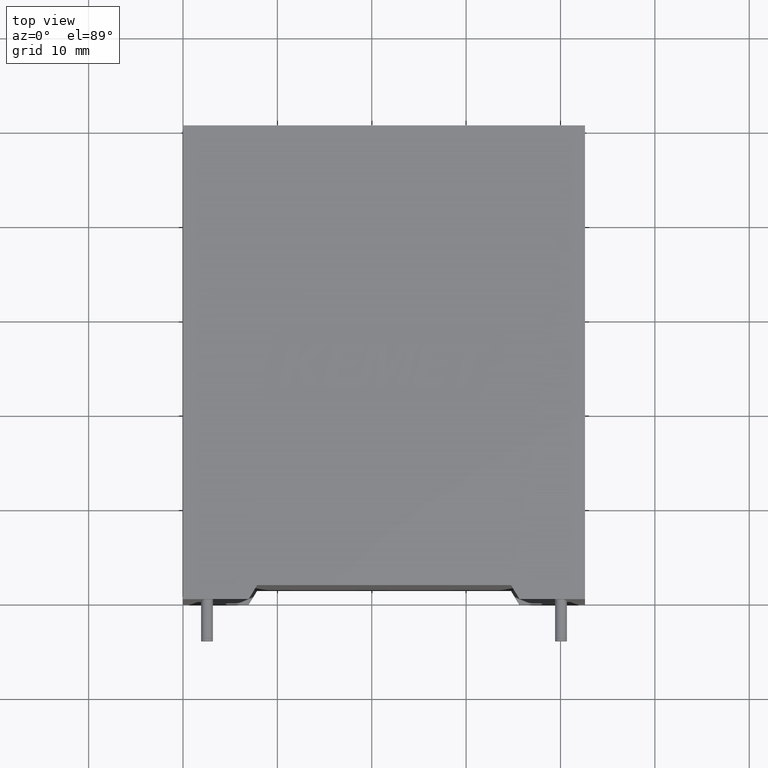
[diagram: clean part render]
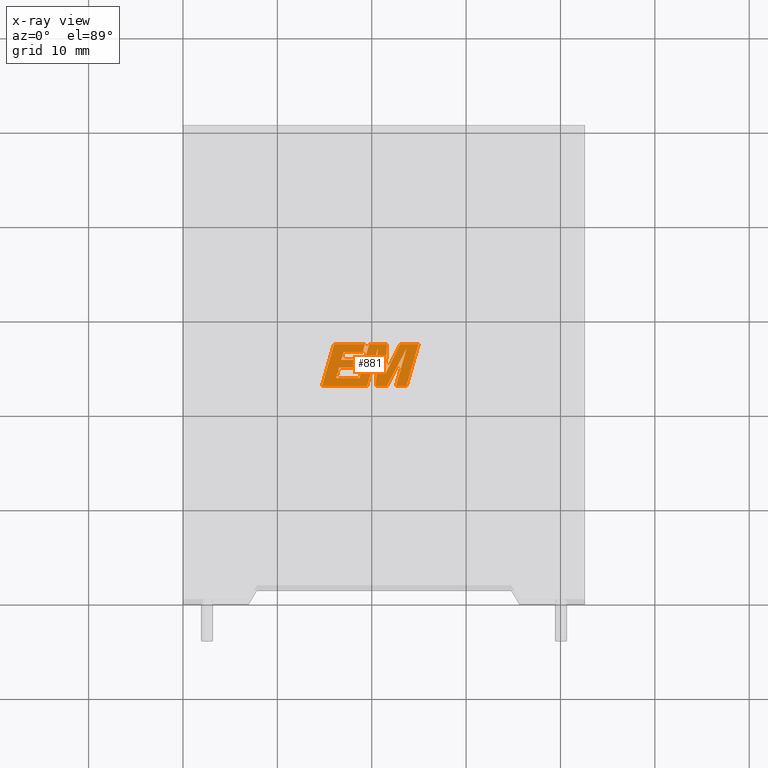
[diagram: x-ray — body ghosted, one internal face saturated and labeled with its STEP entity id]
A machine part, top view, then the same camera in x-ray: the body is ghosted and one INTERNAL B-rep face — a face not visible from any outside direction — is saturated and labeled: STEP entity #881.
In plain terms, the highlighted planar face has unit normal (0, 0, -1).
Its self-contained STEP definition (entity closure, byte-faithful):
#5 = EDGE_LOOP ( 'NONE', ( #3273, #1567, #3357, #2849, #3428, #650, #1947, #246, #2525, #399, #1498, #324, #291, #831, #211, #589, #279, #1549, #3099, #2994, #1437, #2503, #878 ) ) ;
#12 = DIRECTION ( 'NONE',  ( 0.0000000000000000000, 0.0000000000000000000, -1.000000000000000000 ) ) ;
#52 = VECTOR ( 'NONE', #784, 1000.000000000000000 ) ;
#54 = CARTESIAN_POINT ( 'NONE',  ( 22.55971088192821100, 22.57493999999988100, 35.39999999999999900 ) ) ;
#57 = DIRECTION ( 'NONE',  ( -0.2765379750249978300, -0.9610029908221272600, 0.0000000000000000000 ) ) ;
#68 = CARTESIAN_POINT ( 'NONE',  ( 18.72003407046369000, 22.57493999999987700, 35.39999999999999900 ) ) ;
#79 = CARTESIAN_POINT ( 'NONE',  ( 16.54963302310860100, 24.52120559325017300, 35.39999999999999900 ) ) ;
#142 = DIRECTION ( 'NONE',  ( 0.2740217765954296400, 0.9617234872620531400, 0.0000000000000000000 ) ) ;
#204 = VERTEX_POINT ( 'NONE', #792 ) ;
#208 = EDGE_CURVE ( 'NONE', #204, #791, #2668, .T. ) ;
#211 = ORIENTED_EDGE ( 'NONE', *, *, #1575, .F. ) ;
#220 = LINE ( 'NONE', #2665, #1464 ) ;
#244 = DIRECTION ( 'NONE',  ( 0.4668459304955230900, 0.8843386665637600300, 0.0000000000000000000 ) ) ;
#246 = ORIENTED_EDGE ( 'NONE', *, *, #3385, .F. ) ;
#273 = VERTEX_POINT ( 'NONE', #2921 ) ;
#279 = ORIENTED_EDGE ( 'NONE', *, *, #1676, .F. ) ;
#291 = ORIENTED_EDGE ( 'NONE', *, *, #993, .F. ) ;
#299 = EDGE_CURVE ( 'NONE', #2126, #360, #3167, .T. ) ;
#324 = ORIENTED_EDGE ( 'NONE', *, *, #2991, .F. ) ;
#349 = VECTOR ( 'NONE', #3203, 1000.000000000000100 ) ;
#350 = CARTESIAN_POINT ( 'NONE',  ( 19.72672177880340200, 27.01047267852246800, 35.39999999999999900 ) ) ;
#360 = VERTEX_POINT ( 'NONE', #2139 ) ;
#371 = CARTESIAN_POINT ( 'NONE',  ( 16.00748119315608500, 27.01047267852246800, 35.39999999999999900 ) ) ;
#399 = ORIENTED_EDGE ( 'NONE', *, *, #1012, .F. ) ;
#407 = VECTOR ( 'NONE', #481, 1000.000000000000200 ) ;
#464 = LINE ( 'NONE', #3163, #670 ) ;
#478 = CARTESIAN_POINT ( 'NONE',  ( 18.69434191160631900, 23.41880278269269100, 35.39999999999999900 ) ) ;
#479 = EDGE_CURVE ( 'NONE', #1415, #2126, #945, .T. ) ;
#481 = DIRECTION ( 'NONE',  ( 0.2732148821746573400, 0.9619530280415400400, 0.0000000000000000000 ) ) ;
#498 = EDGE_CURVE ( 'NONE', #1433, #2534, #906, .T. ) ;
#503 = DIRECTION ( 'NONE',  ( -1.000000000000000000, 0.0000000000000000000, 0.0000000000000000000 ) ) ;
#513 = CARTESIAN_POINT ( 'NONE',  ( 21.61565822307399600, 27.01047267852246800, 35.39999999999999900 ) ) ;
#578 = CARTESIAN_POINT ( 'NONE',  ( 24.96209664954390200, 27.01047267852246800, 35.39999999999999900 ) ) ;
#587 = EDGE_CURVE ( 'NONE', #2277, #273, #2165, .T. ) ;
#589 = ORIENTED_EDGE ( 'NONE', *, *, #587, .F. ) ;
#590 = CARTESIAN_POINT ( 'NONE',  ( 16.54963302310860100, 24.52120559325017300, 35.39999999999999900 ) ) ;
#603 = DIRECTION ( 'NONE',  ( 1.000000000000000000, 0.0000000000000000000, 0.0000000000000000000 ) ) ;
#613 = DIRECTION ( 'NONE',  ( 1.000000000000000000, 0.0000000000000000000, 0.0000000000000000000 ) ) ;
#629 = LINE ( 'NONE', #2081, #1123 ) ;
#641 = CARTESIAN_POINT ( 'NONE',  ( 21.61565822307399600, 27.01047267852246800, 35.39999999999999900 ) ) ;
#650 = ORIENTED_EDGE ( 'NONE', *, *, #1846, .F. ) ;
#660 = VERTEX_POINT ( 'NONE', #2022 ) ;
#670 = VECTOR ( 'NONE', #503, 1000.000000000000000 ) ;
#680 = DIRECTION ( 'NONE',  ( 0.2763139702539144100, 0.9610674221107065000, 0.0000000000000000000 ) ) ;
#720 = VERTEX_POINT ( 'NONE', #2898 ) ;
#724 = EDGE_CURVE ( 'NONE', #1397, #2688, #762, .T. ) ;
#727 = VECTOR ( 'NONE', #142, 1000.000000000000100 ) ;
#738 = VERTEX_POINT ( 'NONE', #513 ) ;
#762 = LINE ( 'NONE', #3387, #52 ) ;
#784 = DIRECTION ( 'NONE',  ( -0.05596501978068446600, -0.9984327301130244700, 0.0000000000000000000 ) ) ;
#791 = VERTEX_POINT ( 'NONE', #1527 ) ;
#792 = CARTESIAN_POINT ( 'NONE',  ( 21.60450190883435100, 22.57493999999987700, 35.39999999999999900 ) ) ;
#796 = EDGE_CURVE ( 'NONE', #1595, #1433, #2209, .T. ) ;
#812 = LINE ( 'NONE', #68, #3047 ) ;
#831 = ORIENTED_EDGE ( 'NONE', *, *, #2764, .F. ) ;
#862 = EDGE_CURVE ( 'NONE', #791, #2597, #2706, .T. ) ;
#878 = ORIENTED_EDGE ( 'NONE', *, *, #2091, .F. ) ;
#881 = ADVANCED_FACE ( 'NONE', ( #2542 ), #1314, .T. ) ;
#906 = LINE ( 'NONE', #1966, #727 ) ;
#945 = LINE ( 'NONE', #2251, #2299 ) ;
#948 = EDGE_CURVE ( 'NONE', #3029, #1595, #2295, .T. ) ;
#974 = CARTESIAN_POINT ( 'NONE',  ( 19.04451057535562700, 26.16619180815600400, 35.39999999999999900 ) ) ;
#990 = VECTOR ( 'NONE', #1070, 1000.000000000000100 ) ;
#993 = EDGE_CURVE ( 'NONE', #1868, #1292, #2546, .T. ) ;
#1012 = EDGE_CURVE ( 'NONE', #720, #3212, #1056, .T. ) ;
#1030 = EDGE_CURVE ( 'NONE', #3212, #1486, #812, .T. ) ;
#1056 = LINE ( 'NONE', #371, #2210 ) ;
#1070 = DIRECTION ( 'NONE',  ( 0.05375259206908569700, 0.9985542843760946100, 0.0000000000000000000 ) ) ;
#1123 = VECTOR ( 'NONE', #1577, 1000.000000000000000 ) ;
#1126 = EDGE_CURVE ( 'NONE', #738, #3029, #3375, .T. ) ;
#1134 = VECTOR ( 'NONE', #1413, 1000.000000000000000 ) ;
#1179 = CARTESIAN_POINT ( 'NONE',  ( 18.69434191160631900, 23.41880278269269100, 35.39999999999999900 ) ) ;
#1191 = LINE ( 'NONE', #2868, #407 ) ;
#1203 = VECTOR ( 'NONE', #2069, 1000.000000000000000 ) ;
#1206 = DIRECTION ( 'NONE',  ( 0.2759782365590843200, 0.9611638845408925200, 0.0000000000000000000 ) ) ;
#1243 = CARTESIAN_POINT ( 'NONE',  ( 16.78357331124689000, 25.34118343126179300, 35.39999999999999900 ) ) ;
#1292 = VERTEX_POINT ( 'NONE', #974 ) ;
#1298 = CARTESIAN_POINT ( 'NONE',  ( 16.23552779361820300, 23.41880278269269100, 35.39999999999999900 ) ) ;
#1314 = PLANE ( 'NONE',  #2860 ) ;
#1318 = CARTESIAN_POINT ( 'NONE',  ( 21.60450190883435100, 22.57493999999987700, 35.39999999999999900 ) ) ;
#1329 = LINE ( 'NONE', #2207, #1134 ) ;
#1332 = CARTESIAN_POINT ( 'NONE',  ( 24.96209664954390200, 27.01047267852246800, 35.39999999999999900 ) ) ;
#1335 = CARTESIAN_POINT ( 'NONE',  ( 19.50954545448809100, 22.57493999999987700, 35.39999999999999900 ) ) ;
#1344 = DIRECTION ( 'NONE',  ( -0.4443210308329524900, -0.8958676361826798400, 0.0000000000000000000 ) ) ;
#1397 = VERTEX_POINT ( 'NONE', #2089 ) ;
#1413 = DIRECTION ( 'NONE',  ( -1.000000000000000000, 0.0000000000000000000, 0.0000000000000000000 ) ) ;
#1415 = VERTEX_POINT ( 'NONE', #2635 ) ;
#1433 = VERTEX_POINT ( 'NONE', #1298 ) ;
#1437 = ORIENTED_EDGE ( 'NONE', *, *, #1126, .F. ) ;
#1450 = CARTESIAN_POINT ( 'NONE',  ( 20.42202856382045800, 22.57493999999987700, 35.39999999999999900 ) ) ;
#1464 = VECTOR ( 'NONE', #1344, 1000.000000000000100 ) ;
#1486 = VERTEX_POINT ( 'NONE', #1335 ) ;
#1498 = ORIENTED_EDGE ( 'NONE', *, *, #1851, .F. ) ;
#1527 = CARTESIAN_POINT ( 'NONE',  ( 23.69914816909359300, 26.54279440274525800, 35.39999999999999900 ) ) ;
#1549 = ORIENTED_EDGE ( 'NONE', *, *, #498, .F. ) ;
#1567 = ORIENTED_EDGE ( 'NONE', *, *, #479, .F. ) ;
#1575 = EDGE_CURVE ( 'NONE', #273, #2905, #1329, .T. ) ;
#1577 = DIRECTION ( 'NONE',  ( 1.000000000000000000, 0.0000000000000000000, 0.0000000000000000000 ) ) ;
#1595 = VERTEX_POINT ( 'NONE', #1179 ) ;
#1596 = DIRECTION ( 'NONE',  ( -1.000000000000000000, 0.0000000000000000000, 0.0000000000000000000 ) ) ;
#1606 = DIRECTION ( 'NONE',  ( -1.000000000000000000, 0.0000000000000000000, -0.0000000000000000000 ) ) ;
#1654 = CARTESIAN_POINT ( 'NONE',  ( 17.02363656092146000, 26.16619180815600400, 35.39999999999999900 ) ) ;
#1672 = CARTESIAN_POINT ( 'NONE',  ( 18.45314577919338500, 24.52120559325017300, 35.39999999999999900 ) ) ;
#1676 = EDGE_CURVE ( 'NONE', #2534, #2277, #2000, .T. ) ;
#1705 = LINE ( 'NONE', #2334, #1203 ) ;
#1739 = VECTOR ( 'NONE', #2230, 1000.000000000000100 ) ;
#1760 = VECTOR ( 'NONE', #603, 1000.000000000000000 ) ;
#1779 = CARTESIAN_POINT ( 'NONE',  ( 18.45314577919338500, 24.52120559325017300, 35.39999999999999900 ) ) ;
#1793 = EDGE_CURVE ( 'NONE', #2597, #1415, #1705, .T. ) ;
#1846 = EDGE_CURVE ( 'NONE', #2688, #204, #629, .T. ) ;
#1851 = EDGE_CURVE ( 'NONE', #2812, #720, #464, .T. ) ;
#1868 = VERTEX_POINT ( 'NONE', #2604 ) ;
#1891 = LINE ( 'NONE', #2931, #990 ) ;
#1947 = ORIENTED_EDGE ( 'NONE', *, *, #724, .F. ) ;
#1966 = CARTESIAN_POINT ( 'NONE',  ( 16.23552779361820300, 23.41880278269269100, 35.39999999999999900 ) ) ;
#2000 = LINE ( 'NONE', #79, #2402 ) ;
#2020 = LINE ( 'NONE', #2526, #2554 ) ;
#2022 = CARTESIAN_POINT ( 'NONE',  ( 21.44508031966771700, 23.84167114338324800, 35.39999999999999900 ) ) ;
#2045 = VECTOR ( 'NONE', #2591, 1000.000000000000000 ) ;
#2069 = DIRECTION ( 'NONE',  ( 1.000000000000000000, 0.0000000000000000000, 0.0000000000000000000 ) ) ;
#2081 = CARTESIAN_POINT ( 'NONE',  ( 20.42202856382045800, 22.57493999999987700, 35.39999999999999900 ) ) ;
#2089 = CARTESIAN_POINT ( 'NONE',  ( 20.64337227469650000, 26.52377815657259000, 35.39999999999999900 ) ) ;
#2091 = EDGE_CURVE ( 'NONE', #360, #660, #220, .T. ) ;
#2126 = VERTEX_POINT ( 'NONE', #578 ) ;
#2139 = CARTESIAN_POINT ( 'NONE',  ( 23.01670218402871300, 27.01047267852246800, 35.39999999999999900 ) ) ;
#2145 = CARTESIAN_POINT ( 'NONE',  ( 23.69914816909359300, 26.54279440274525800, 35.39999999999999900 ) ) ;
#2165 = LINE ( 'NONE', #1779, #3200 ) ;
#2195 = DIRECTION ( 'NONE',  ( -0.2762517575166409900, -0.9610853065513834700, 0.0000000000000000000 ) ) ;
#2207 = CARTESIAN_POINT ( 'NONE',  ( 18.68735580131990700, 25.34118343126179300, 35.39999999999999900 ) ) ;
#2209 = LINE ( 'NONE', #478, #2045 ) ;
#2210 = VECTOR ( 'NONE', #57, 1000.000000000000100 ) ;
#2230 = DIRECTION ( 'NONE',  ( 0.2793947940878290800, 0.9601763114327595000, 0.0000000000000000000 ) ) ;
#2251 = CARTESIAN_POINT ( 'NONE',  ( 23.68684829922329600, 22.57493999999988100, 35.39999999999999900 ) ) ;
#2277 = VERTEX_POINT ( 'NONE', #1672 ) ;
#2295 = LINE ( 'NONE', #350, #3336 ) ;
#2299 = VECTOR ( 'NONE', #680, 1000.000000000000100 ) ;
#2334 = CARTESIAN_POINT ( 'NONE',  ( 22.55971088192821100, 22.57493999999988100, 35.39999999999999900 ) ) ;
#2402 = VECTOR ( 'NONE', #613, 1000.000000000000000 ) ;
#2453 = CARTESIAN_POINT ( 'NONE',  ( 14.73111344322171200, 22.57493999999987700, 35.39999999999999900 ) ) ;
#2503 = ORIENTED_EDGE ( 'NONE', *, *, #3158, .F. ) ;
#2505 = DIRECTION ( 'NONE',  ( -1.000000000000000000, 0.0000000000000000000, 0.0000000000000000000 ) ) ;
#2525 = ORIENTED_EDGE ( 'NONE', *, *, #1030, .F. ) ;
#2526 = CARTESIAN_POINT ( 'NONE',  ( 19.50954545448809100, 22.57493999999987700, 35.39999999999999900 ) ) ;
#2534 = VERTEX_POINT ( 'NONE', #590 ) ;
#2542 = FACE_OUTER_BOUND ( 'NONE', #5, .T. ) ;
#2546 = LINE ( 'NONE', #1654, #1760 ) ;
#2554 = VECTOR ( 'NONE', #1206, 1000.000000000000000 ) ;
#2591 = DIRECTION ( 'NONE',  ( -1.000000000000000000, 0.0000000000000000000, 0.0000000000000000000 ) ) ;
#2597 = VERTEX_POINT ( 'NONE', #54 ) ;
#2604 = CARTESIAN_POINT ( 'NONE',  ( 17.02363656092146000, 26.16619180815600400, 35.39999999999999900 ) ) ;
#2635 = CARTESIAN_POINT ( 'NONE',  ( 23.68684829922329600, 22.57493999999988100, 35.39999999999999900 ) ) ;
#2662 = VECTOR ( 'NONE', #2505, 1000.000000000000000 ) ;
#2665 = CARTESIAN_POINT ( 'NONE',  ( 23.01670218402871300, 27.01047267852246800, 35.39999999999999900 ) ) ;
#2668 = LINE ( 'NONE', #1318, #2920 ) ;
#2673 = CARTESIAN_POINT ( 'NONE',  ( -0.1503410928526370500, 0.3518460167495629500, 35.39999999999999900 ) ) ;
#2688 = VERTEX_POINT ( 'NONE', #1450 ) ;
#2706 = LINE ( 'NONE', #2145, #349 ) ;
#2744 = DIRECTION ( 'NONE',  ( 1.000000000000000000, 0.0000000000000000000, 0.0000000000000000000 ) ) ;
#2750 = CARTESIAN_POINT ( 'NONE',  ( 16.78357331124689000, 25.34118343126179300, 35.39999999999999900 ) ) ;
#2764 = EDGE_CURVE ( 'NONE', #2905, #1868, #3143, .T. ) ;
#2812 = VERTEX_POINT ( 'NONE', #3358 ) ;
#2837 = DIRECTION ( 'NONE',  ( 0.2746459304916870600, 0.9615454294334487800, 0.0000000000000000000 ) ) ;
#2849 = ORIENTED_EDGE ( 'NONE', *, *, #862, .F. ) ;
#2860 = AXIS2_PLACEMENT_3D ( 'NONE', #2673, #12, #1606 ) ;
#2868 = CARTESIAN_POINT ( 'NONE',  ( 19.04451057535562700, 26.16619180815600400, 35.39999999999999900 ) ) ;
#2887 = CARTESIAN_POINT ( 'NONE',  ( 19.72672177880340200, 27.01047267852246800, 35.39999999999999900 ) ) ;
#2898 = CARTESIAN_POINT ( 'NONE',  ( 16.00748119315608500, 27.01047267852246800, 35.39999999999999900 ) ) ;
#2905 = VERTEX_POINT ( 'NONE', #1243 ) ;
#2917 = VECTOR ( 'NONE', #1596, 1000.000000000000000 ) ;
#2920 = VECTOR ( 'NONE', #244, 1000.000000000000000 ) ;
#2921 = CARTESIAN_POINT ( 'NONE',  ( 18.68735580131990700, 25.34118343126179300, 35.39999999999999900 ) ) ;
#2931 = CARTESIAN_POINT ( 'NONE',  ( 21.44508031966771700, 23.84167114338324800, 35.39999999999999900 ) ) ;
#2991 = EDGE_CURVE ( 'NONE', #1292, #2812, #1191, .T. ) ;
#2994 = ORIENTED_EDGE ( 'NONE', *, *, #948, .F. ) ;
#3029 = VERTEX_POINT ( 'NONE', #2887 ) ;
#3047 = VECTOR ( 'NONE', #2744, 1000.000000000000000 ) ;
#3099 = ORIENTED_EDGE ( 'NONE', *, *, #796, .F. ) ;
#3143 = LINE ( 'NONE', #2750, #1739 ) ;
#3158 = EDGE_CURVE ( 'NONE', #660, #738, #1891, .T. ) ;
#3163 = CARTESIAN_POINT ( 'NONE',  ( 19.28430409104226900, 27.01047267852246800, 35.39999999999999900 ) ) ;
#3167 = LINE ( 'NONE', #1332, #2917 ) ;
#3200 = VECTOR ( 'NONE', #2837, 1000.000000000000000 ) ;
#3203 = DIRECTION ( 'NONE',  ( -0.2760118818968583200, -0.9611542233438683500, 0.0000000000000000000 ) ) ;
#3212 = VERTEX_POINT ( 'NONE', #2453 ) ;
#3273 = ORIENTED_EDGE ( 'NONE', *, *, #299, .F. ) ;
#3336 = VECTOR ( 'NONE', #2195, 1000.000000000000200 ) ;
#3357 = ORIENTED_EDGE ( 'NONE', *, *, #1793, .F. ) ;
#3358 = CARTESIAN_POINT ( 'NONE',  ( 19.28430409104226900, 27.01047267852246800, 35.39999999999999900 ) ) ;
#3375 = LINE ( 'NONE', #641, #2662 ) ;
#3385 = EDGE_CURVE ( 'NONE', #1486, #1397, #2020, .T. ) ;
#3387 = CARTESIAN_POINT ( 'NONE',  ( 20.64337227469650000, 26.52377815657259000, 35.39999999999999900 ) ) ;
#3428 = ORIENTED_EDGE ( 'NONE', *, *, #208, .F. ) ;